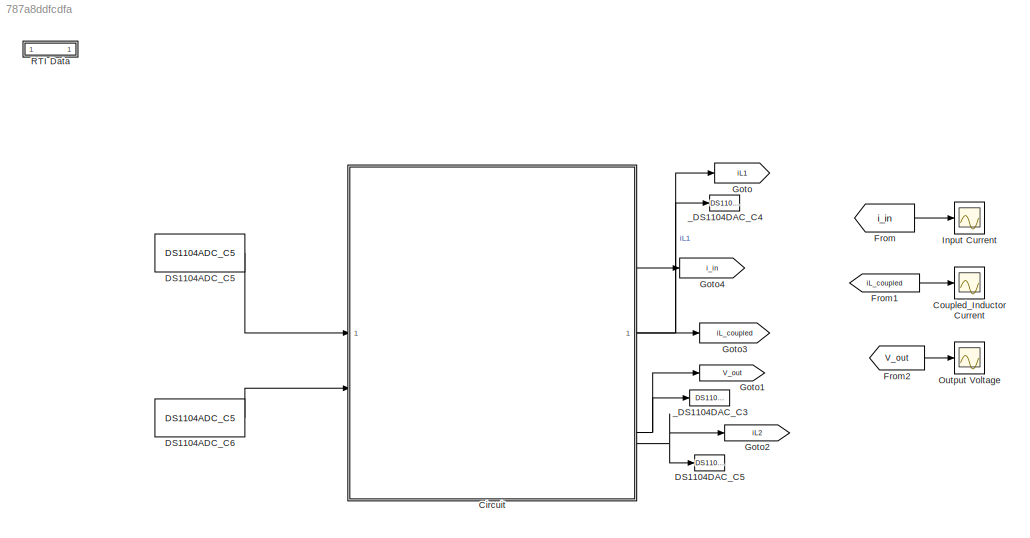
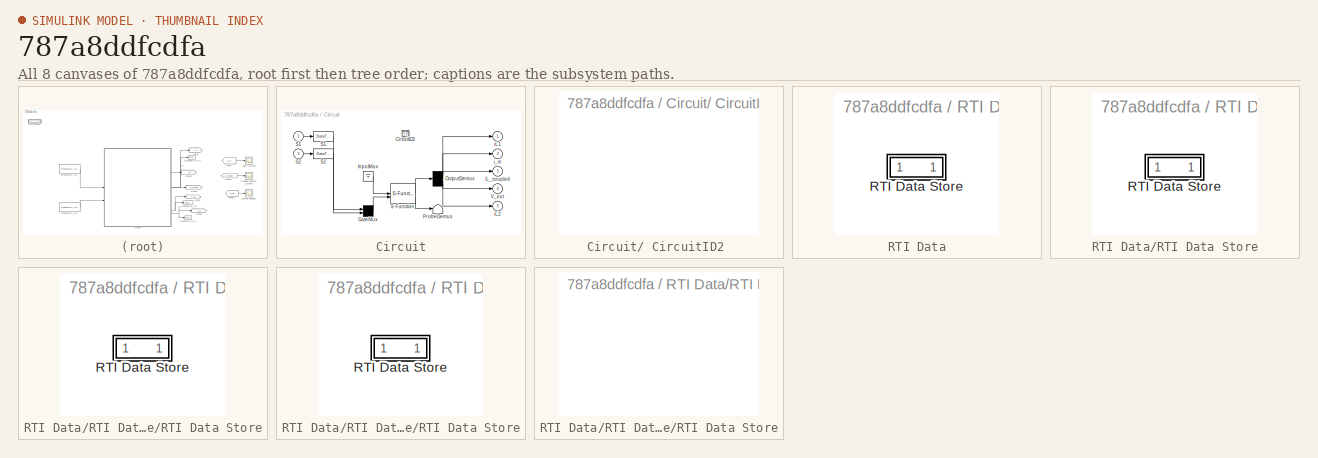
[diagram: thumbnail index - all 8 canvases of the model, root first then tree order]
MODEL slx_787a8ddfcdfa
KIND model
CONFIG AbsTol = auto
CONFIG EnableMultiTasking = off
CONFIG FixedStep = 1e-5
CONFIG InitFcn = , if any(exist('rtifpga_mdlclblib', 'file') ~= 0), rtifpga_mdlclblib('Init', bdroot); end,\n
CONFIG MaxStep = auto
CONFIG MinStep = auto
CONFIG PostLoadFcn = , if any(exist('dsrtsu_mdlpostloadfcn', 'file') ~= 0), dsrtsu_mdlpostloadfcn('Execute', bdroot); end, \n
CONFIG RelTol = 1e-3
CONFIG SampleTimeConstraint = Unconstrained
CONFIG SolverName = ode1
CONFIG StartTime = 0.0
CONFIG StopTime = Inf
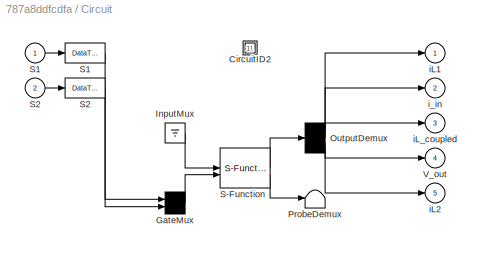
BLOCK [SubSystem] Circuit
  CopyFcn = plecs('sl', 203);
  DeleteFcn = plecs('sl', 205);
  DestroyFcn = plecs('sl', 207);
  ErrorFcn = plerrorfcn
  InitFcn = plecs('sl', 214);
  LoadFcn = plecs('sl', 200);
  NameChangeFcn = plecs('sl', 210);
  OpenFcn = plecs('sl', 202);
  PostSaveFcn = plecs('sl', 201);
  PreCopyFcn = plecs('sl', 216);
  PreSaveFcn = plecs('sl', 211);
  ShowPortLabels = FromPortBlockName
  StartFcn = plecs('sl', 208);
  StopFcn = plecs('sl', 209);
  UndoDeleteFcn = plecs('sl', 206);
BLOCK [SubSystem] Circuit/ CircuitID2 
BLOCK [Mux] Circuit/ GateMux 
  Inputs = [ 1 1 ]
BLOCK [Ground] Circuit/ InputMux 
BLOCK [Demux] Circuit/ OutputDemux 
  Outputs = [ 1 1 2 1 1 ]
BLOCK [Terminator] Circuit/ ProbeDemux 
BLOCK [S-Function] Circuit/ S-Function 
  EnableBusSupport = off
  FunctionName = plecs
  SFcnIsStateOwnerBlock = off
  SFunctionDeploymentMode = off
BLOCK [DataTypeConversion] Circuit/ S1 
BLOCK [DataTypeConversion] Circuit/ S2 
BLOCK [Inport] Circuit/S1
  PortDimensions = 1
BLOCK [Inport] Circuit/S2
  Port = 2
  PortDimensions = 1
BLOCK [Outport] Circuit/V_out
  Port = 4
  PortDimensions = 1
BLOCK [Outport] Circuit/iL1
  PortDimensions = 1
BLOCK [Outport] Circuit/iL2
  Port = 5
  PortDimensions = 1
BLOCK [Outport] Circuit/iL_coupled
  Port = 3
  PortDimensions = 2
BLOCK [Outport] Circuit/i_in
  Port = 2
  PortDimensions = 1
BLOCK [Scope] Coupled_Inductor Current
  Floating = off
  NumInputPorts = 1
  ScopeSpecificationString = Simulink.scopes.TimeScopeBlockCfg('CurrentConfiguration', extmgr.ConfigurationSet(extmgr.Configuration('Core','General UI',true),extmgr.Configuration('Core','Source UI',true),extmgr.Configuration('Sources','WiredSimulink',true,'DataLogging',true,'DataLoggingVariableName','ScopeData1','DataLoggingSaveFormat','StructureWithTime'),extmgr.Configuration('Visuals','Time Domain',true,'SerializedDisplays'...<+1549ch>
BLOCK [Reference] DS1104ADC_C5  REF=rtilib1104/DS1104 MASTER PPC/DS1104ADC_C5
  SourceBlock = rtilib1104/DS1104 MASTER PPC/DS1104ADC_C5
  SourceProductName = dSPACE RTI1104
  SourceType = RTI
BLOCK [Reference] DS1104ADC_C6  REF=rtilib1104/DS1104 MASTER PPC/DS1104ADC_C5
  SourceBlock = rtilib1104/DS1104 MASTER PPC/DS1104ADC_C5
  SourceProductName = dSPACE RTI1104
  SourceType = RTI
BLOCK [Reference] DS1104DAC_C5  REF=rtilib1104/DS1104 MASTER PPC/DS1104DAC_C1
  SourceBlock = rtilib1104/DS1104 MASTER PPC/DS1104DAC_C1
  SourceProductName = dSPACE RTI1104
  SourceType = RTI
BLOCK [From] From
  GotoTag = i_in
  TagVisibility = global
BLOCK [From] From1
  GotoTag = iL_coupled
  TagVisibility = global
BLOCK [From] From2
  GotoTag = V_out
  TagVisibility = global
BLOCK [Goto] Goto
  GotoTag = iL1
  TagVisibility = global
BLOCK [Goto] Goto1
  GotoTag = V_out
  TagVisibility = global
BLOCK [Goto] Goto2
  GotoTag = iL2
  TagVisibility = global
BLOCK [Goto] Goto3
  GotoTag = iL_coupled
  TagVisibility = global
BLOCK [Goto] Goto4
  GotoTag = i_in
  TagVisibility = global
BLOCK [Scope] Input Current
  Floating = off
  NumInputPorts = 1
  ScopeSpecificationString = Simulink.scopes.TimeScopeBlockCfg('CurrentConfiguration', extmgr.ConfigurationSet(extmgr.Configuration('Core','General UI',true),extmgr.Configuration('Core','Source UI',true),extmgr.Configuration('Sources','WiredSimulink',true,'DataLogging',true,'DataLoggingVariableName','ScopeData2','DataLoggingSaveFormat','StructureWithTime'),extmgr.Configuration('Visuals','Time Domain',true,'SerializedDisplays'...<+1533ch>
BLOCK [Scope] Output Voltage
  Floating = off
  NumInputPorts = 1
  ScopeSpecificationString = Simulink.scopes.TimeScopeBlockCfg('CurrentConfiguration', extmgr.ConfigurationSet(extmgr.Configuration('Core','General UI',true),extmgr.Configuration('Core','Source UI',true),extmgr.Configuration('Sources','WiredSimulink',true,'DataLogging',true,'DataLoggingSaveFormat','StructureWithTime'),extmgr.Configuration('Visuals','Time Domain',true,'SerializedDisplays',{struct('MinYLimReal','-7.66314','MaxY...<+2109ch>
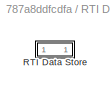
BLOCK [SubSystem] RTI Data
  CopyFcn = if exist('rtidc'), try,  rtidc('DataHostBlockClbCopy', gcbh); catch, disp(['Warning: ''CopyFcn'' for RTI Data block failed: ' lasterr]); end, end,
  DeleteFcn = if exist('rtidc'), try,  rtidc('DataHostBlockClbDelete', gcbh); catch, disp(['Warning: ''DeleteFcn'' for RTI Data block failed: ' lasterr]); end, end,
  LoadFcn = if exist('rtidc'), try,  rtidc('DataHostBlockClbLoad', gcbh); catch, disp(['Warning: ''LoadFcn'' for RTI Data block failed: ' lasterr]); end, end,
  ModelCloseFcn = if exist('rtidc'), try,  rtidc('DataHostBlockClbModelClose', gcbh); catch, disp(['Warning: ''ModelCloseFcn'' for RTI Data block failed: ' lasterr]); end, end,
  NameChangeFcn = if exist('rtidc'), try,  rtidc('DataHostBlockClbNameChange', gcbh); catch, disp(['Warning: ''NameChangeFcn'' for RTI Data block failed: ' lasterr]); end, end,
  PostSaveFcn = if exist('rtidc'), try,  rtidc('DataHostBlockClbPostSave', gcbh); catch, disp(['Warning: ''PostSaveFcn'' for RTI Data block failed: ' lasterr]); end, end,
  PreSaveFcn = if exist('rtidc'), try,  rtidc('DataHostBlockClbPreSave', gcbh); catch, disp(['Warning: ''PreSaveFcn'' for RTI Data block failed: ' lasterr]); end, end,
  Tag = struct('RTIDataServer',struct('RTIDataServerVs','2','RTIModelDescription','struct(''main'',''DCDC'',''sub'','''',''isMp'',0)'))
BLOCK [SubSystem] RTI Data/RTI Data Store
  Tag = struct('private',struct('version',struct('dsVer',uint32(2)),'access',struct('modified',['03-Jul-2025 18:23:20'],'type','Model','isPerm',1)),'public',struct('main',struct('data',[]),'sub',struct('name',{{'DCDC'}},'data',{{struct('TH',struct('thTaskInfo',struct('taskType',{'TIMER','HWINT','TMRINT','SWINT','GLINT'},'tasksNumOf',{1,0,0,0,0},'srcIds',{{'TIMERA'},{},{},{},{}},'taskNames',{{['Timer Task ...<+761ch>
BLOCK [SubSystem] RTI Data/RTI Data Store/RTI Data Store
BLOCK [SubSystem] RTI Data/RTI Data Store/RTI Data Store/RTI Data Store
BLOCK [SubSystem] RTI Data/RTI Data Store/RTI Data Store/RTI Data Store/RTI Data Store
BLOCK [Reference] _DS1104DAC_C3  REF=rtilib1104/DS1104 MASTER PPC/DS1104DAC_C1
  SourceBlock = rtilib1104/DS1104 MASTER PPC/DS1104DAC_C1
  SourceProductName = dSPACE RTI1104
  SourceType = RTI
BLOCK [Reference] _DS1104DAC_C4  REF=rtilib1104/DS1104 MASTER PPC/DS1104DAC_C1
  SourceBlock = rtilib1104/DS1104 MASTER PPC/DS1104DAC_C1
  SourceProductName = dSPACE RTI1104
  SourceType = RTI
NET Circuit:1 -> Goto:1, _DS1104DAC_C4:1
LINE Circuit:2 -> Goto4:1
LINE Circuit:3 -> Goto3:1
NET Circuit:4 -> Goto1:1, _DS1104DAC_C3:1
NET Circuit:5 -> DS1104DAC_C5:1, Goto2:1
LINE DS1104ADC_C5:1 -> Circuit:1
LINE DS1104ADC_C6:1 -> Circuit:2
LINE From1:1 -> Coupled_Inductor Current:1
LINE From2:1 -> Output Voltage:1
LINE From:1 -> Input Current:1
note: NET lines group one-source signal fan-out (src -> all destinations, sorted); 1:1 wires keep LINE
